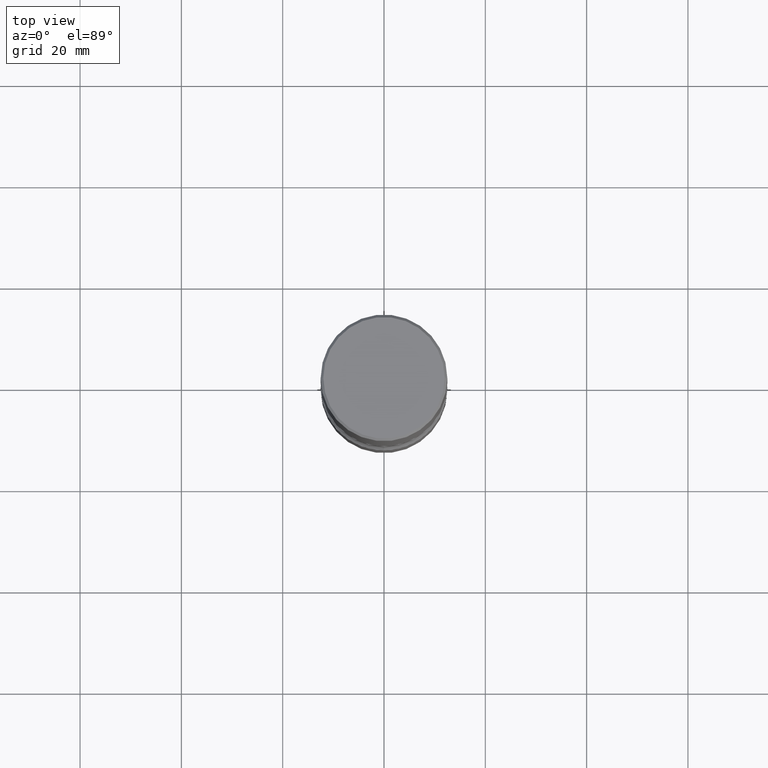
[diagram: clean part render]
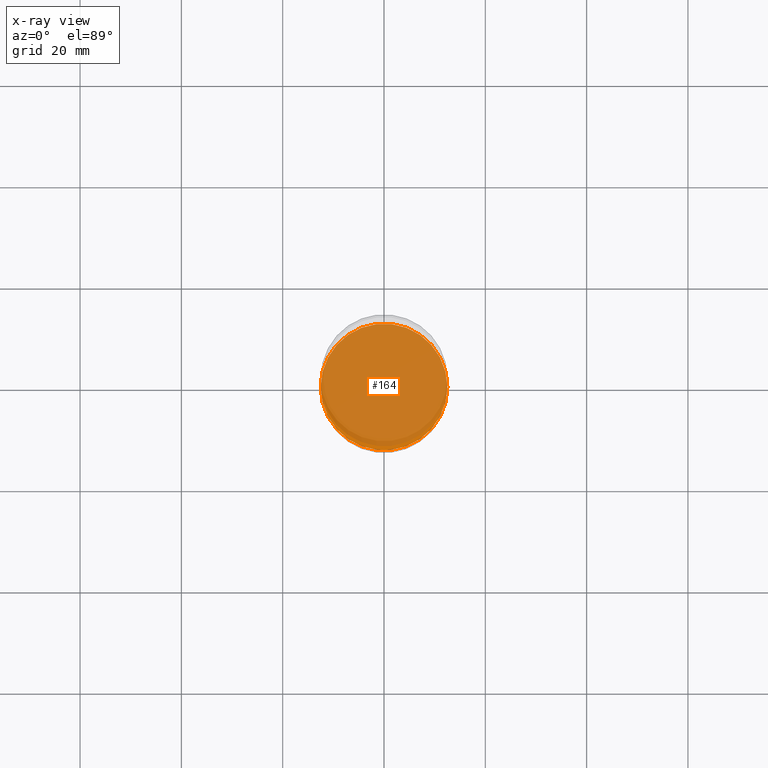
[diagram: x-ray — body ghosted, one internal face saturated and labeled with its STEP entity id]
A machine part, top view, then the same camera in x-ray: the body is ghosted and one INTERNAL B-rep face — a face not visible from any outside direction — is saturated and labeled: STEP entity #164.
In plain terms, the highlighted planar face has unit normal (0, -0, -1).
Its self-contained STEP definition (entity closure, byte-faithful):
#12 = AXIS2_PLACEMENT_3D ( 'NONE', #103, #187, #309 ) ;
#103 = CARTESIAN_POINT ( 'NONE',  ( 1.010907895100811684E-28, -1.443308555850979562E-14, -4.133799999999999919 ) ) ;
#131 = FACE_OUTER_BOUND ( 'NONE', #265, .T. ) ;
#144 = CIRCLE ( 'NONE', #12, 0.4921500000000001984 ) ;
#164 = ADVANCED_FACE ( 'NONE', ( #131 ), #346, .F. ) ;
#176 = AXIS2_PLACEMENT_3D ( 'NONE', #341, #256, #430 ) ;
#187 = DIRECTION ( 'NONE',  ( -2.445468806185136597E-29, 3.491481338843145583E-15, 1.000000000000000000 ) ) ;
#202 = ORIENTED_EDGE ( 'NONE', *, *, #447, .T. ) ;
#220 = ORIENTED_EDGE ( 'NONE', *, *, #438, .T. ) ;
#256 = DIRECTION ( 'NONE',  ( 2.438088387897960049E-29, -3.491481338843145188E-15, -1.000000000000000000 ) ) ;
#265 = EDGE_LOOP ( 'NONE', ( #202, #220 ) ) ;
#309 = DIRECTION ( 'NONE',  ( 1.000000000000000000, -6.982962677686267499E-15, 0.000000000000000000 ) ) ;
#322 = VERTEX_POINT ( 'NONE', #390 ) ;
#341 = CARTESIAN_POINT ( 'NONE',  ( 1.010907895100811684E-28, -1.443308555850979562E-14, -4.133799999999999919 ) ) ;
#346 = PLANE ( 'NONE',  #176 ) ;
#352 = DIRECTION ( 'NONE',  ( -2.445468806185136597E-29, 3.491481338843145583E-15, 1.000000000000000000 ) ) ;
#369 = CIRCLE ( 'NONE', #382, 0.4921500000000001984 ) ;
#382 = AXIS2_PLACEMENT_3D ( 'NONE', #479, #352, #525 ) ;
#390 = CARTESIAN_POINT ( 'NONE',  ( 0.4921500000000001984, -1.786975064033309297E-14, -4.133799999999999919 ) ) ;
#410 = VERTEX_POINT ( 'NONE', #534 ) ;
#430 = DIRECTION ( 'NONE',  ( -1.000000000000000000, 6.982962677686265922E-15, -4.876176775795935793E-29 ) ) ;
#438 = EDGE_CURVE ( 'NONE', #410, #322, #369, .T. ) ;
#447 = EDGE_CURVE ( 'NONE', #322, #410, #144, .T. ) ;
#479 = CARTESIAN_POINT ( 'NONE',  ( 1.010907895100811684E-28, -1.443308555850979562E-14, -4.133799999999999919 ) ) ;
#525 = DIRECTION ( 'NONE',  ( 1.000000000000000000, -6.982962677686267499E-15, 0.000000000000000000 ) ) ;
#534 = CARTESIAN_POINT ( 'NONE',  ( -0.4921500000000001984, -1.306682597149549105E-14, -4.133799999999999919 ) ) ;